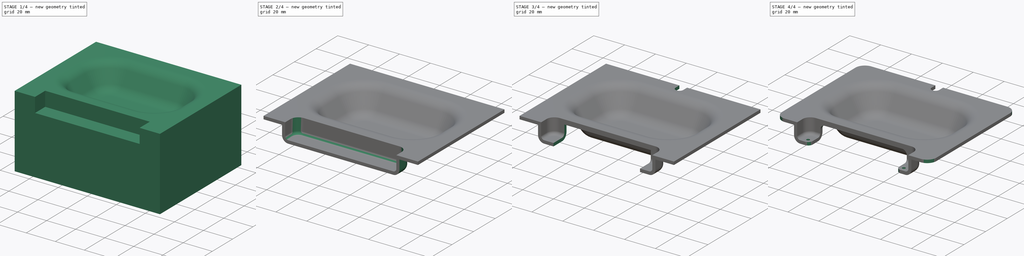
[diagram: build sequence overview — one tinted view per stage of 4, left to right]
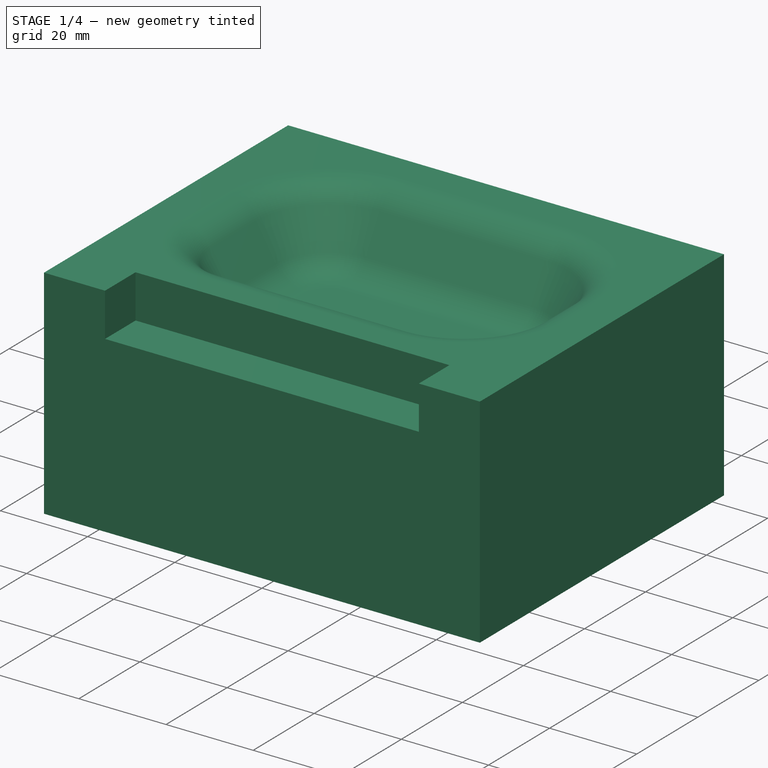
[diagram: stage 1 of 4 — iso view after this stage's code; geometry added in this stage tinted green]
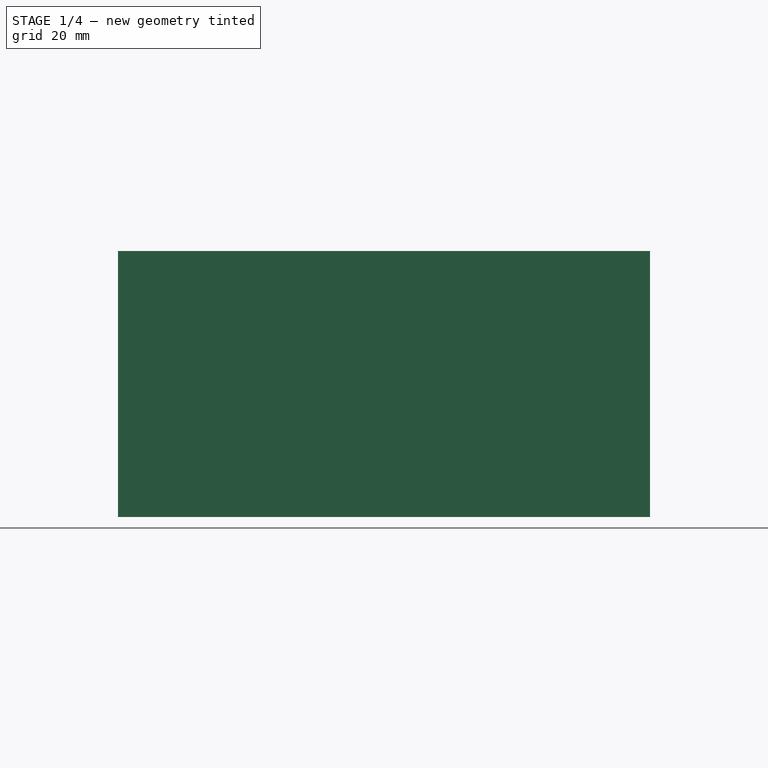
[diagram: stage 1 of 4 — front view after this stage's code; geometry added in this stage tinted green]
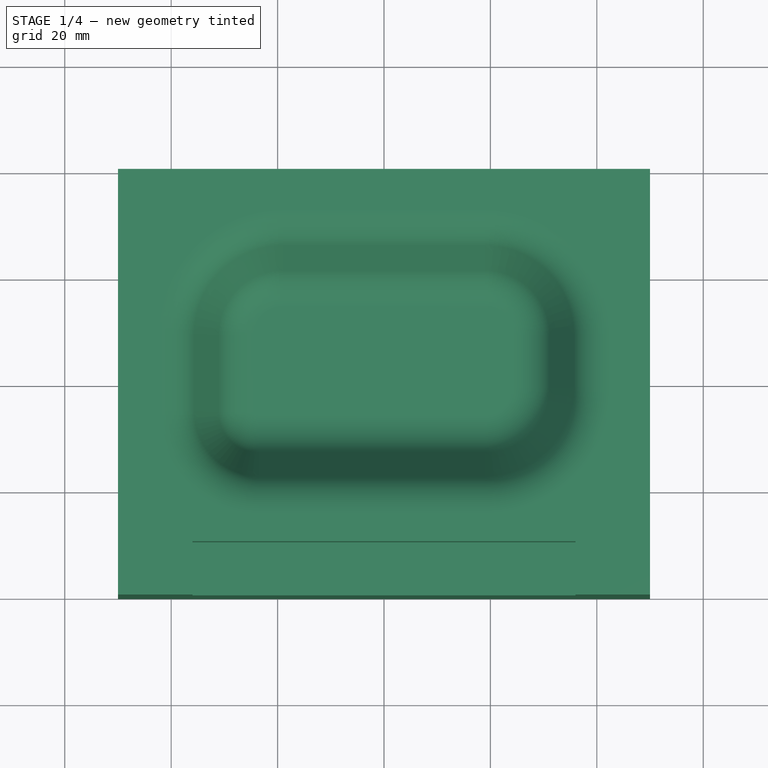
[diagram: stage 1 of 4 — top view after this stage's code; geometry added in this stage tinted green]
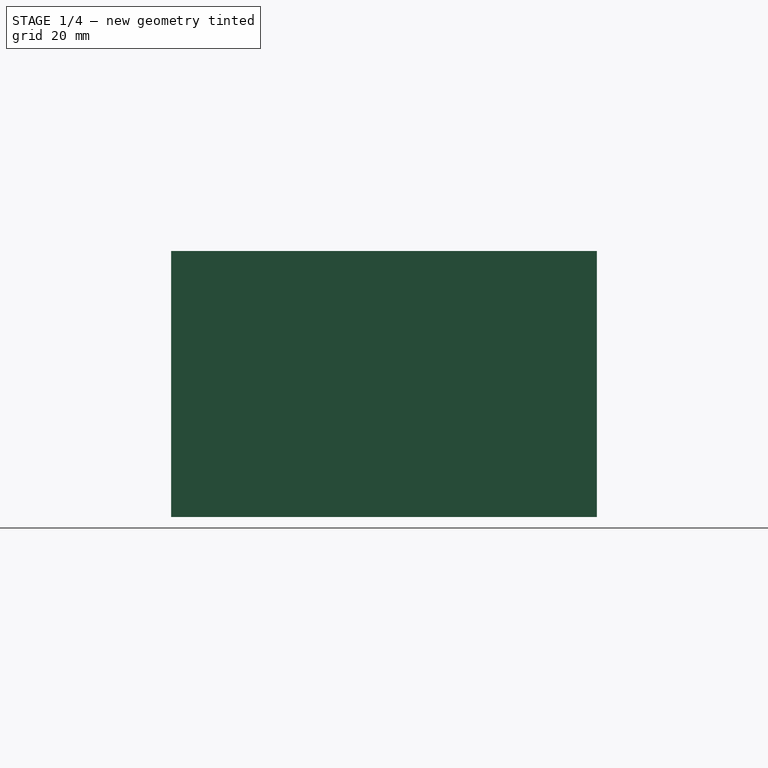
[diagram: stage 1 of 4 — right view after this stage's code; geometry added in this stage tinted green]
FCSTD DOCUMENT  (FreeCAD 0.21R33771 (Git))
Label: ex12
License: All rights reserved
LicenseURL: https://en.wikipedia.org/wiki/All_rights_reserved
objects: PartDesign::Fillet×7, Sketcher::SketchObject×6, PartDesign::Pocket×5, PartDesign::Pad×1, PartDesign::Thickness×1, PartDesign::Body×1
note: 35 computed .brp shape members not serialized (recipe doc carries the construction recipe); baked Part::Feature solids carry a one-line shape summary decoded from their .brp

FEATURE [Sketcher::SketchObject] Sketch
  FullyConstrained = true
  MapMode = 5
  Support = -> [XY_Plane]
  sketch-geometry (5):
    g0: LineSegment StartX=-50 StartY=-40 StartZ=0 EndX=-50 EndY=40 EndZ=0
    g1: LineSegment StartX=-50 StartY=40 StartZ=0 EndX=50 EndY=40 EndZ=0
    g2: LineSegment StartX=50 StartY=40 StartZ=0 EndX=50 EndY=-40 EndZ=0
    g3: LineSegment StartX=50 StartY=-40 StartZ=0 EndX=-50 EndY=-40 EndZ=0
    g4: GeomPoint X=0 Y=0 Z=0
  constraints (12):
    c: Coincident(g0,g1)
    c: Coincident(g1,g2)
    c: Coincident(g2,g3)
    c: Coincident(g3,g0)
    c: Horizontal(g1)
    c: Horizontal(g3)
    c: Vertical(g0)
    c: Vertical(g2)
    c: Symmetric(g1,g0,g4)
    c: Coincident(g4,g-1)
    c: DistanceX(g1,g1) = 100
    c: DistanceY(g2,g2) = 80
FEATURE [PartDesign::Pad] Pad
  Direction = (0,0,1)
  Length = 50
  Length2 = 10
  Profile = -> Sketch
  ReferenceAxis = -> Sketch [N_Axis]
  Reversed = true
  Type = 0
FEATURE [Sketcher::SketchObject] Sketch001
  ExternalGeometry = -> [Pad]
  FullyConstrained = false
  MapMode = 5
  Support = -> [Pad]
  sketch-geometry (10):
    g0: ArcOfCircle CenterX=-18.9746 CenterY=8.97464 CenterZ=0 NormalX=0 NormalY=0 NormalZ=1 AngleXU=0 Radius=19.0254 StartAngle=1.5708 EndAngle=3.14159
    g1: LineSegment StartX=-18.9746 StartY=28 StartZ=0 EndX=18.9746 EndY=28 EndZ=0
    g2: ArcOfCircle CenterX=18.9746 CenterY=8.97464 CenterZ=0 NormalX=0 NormalY=0 NormalZ=1 AngleXU=0 Radius=19.0254 StartAngle=1e-16 EndAngle=1.5708
    g3: LineSegment StartX=38 StartY=8.97464 StartZ=0 EndX=38 EndY=-0.974642 EndZ=0
    g4: ArcOfCircle CenterX=18.9746 CenterY=-0.974642 CenterZ=0 NormalX=0 NormalY=0 NormalZ=1 AngleXU=0 Radius=19.0254 StartAngle=4.71239 EndAngle=6.28319
    g5: LineSegment StartX=18.9746 StartY=-20 StartZ=0 EndX=-23.5249 EndY=-20 EndZ=0
    g6: ArcOfCircle CenterX=-23.5249 CenterY=-5.5249 CenterZ=0 NormalX=0 NormalY=0 NormalZ=1 AngleXU=0 Radius=14.4751 StartAngle=3.14159 EndAngle=4.71239
    g7: LineSegment StartX=-38 StartY=-5.5249 StartZ=0 EndX=-38 EndY=8.97464 EndZ=0
    g8: GeomPoint X=-38 Y=28 Z=0
    g9: GeomPoint X=38 Y=-20 Z=0
  constraints (21):
    c: Tangent(g0,g1) = 1.5708
    c: Tangent(g1,g2) = 1.5708
    c: Tangent(g2,g3) = 1.5708
    c: Tangent(g3,g4) = 1.5708
    c: Tangent(g4,g5) = 1.5708
    c: Tangent(g5,g6) = 1.5708
    c: Tangent(g6,g7) = 1.5708
    c: Tangent(g7,g0) = 1.5708
    c: Horizontal(g1)
    c: Horizontal(g5)
    c: Vertical(g3)
    c: Vertical(g7)
    c: Equal(g2,g4)
    c: PointOnObject(g8,g1)
    c: PointOnObject(g8,g7)
    c: PointOnObject(g9,g3)
    c: PointOnObject(g9,g5)
    c: Symmetric(g0,g2,g-2)
    c: DistanceY(g1,g-4) = 12
    c: Distance(g2,g-4) = 12
    c: Distance(g4,g-5) = 20
FEATURE [PartDesign::Pocket] Pocket
  BaseFeature = -> Pad
  Direction = (0,0,-1)
  Length = 16
  Length2 = 5
  Profile = -> Sketch001
  ReferenceAxis = -> Sketch001 [N_Axis]
  TaperAngle = -30
  Type = 0
FEATURE [PartDesign::Fillet] Fillet
  Base = -> Pocket [Edge36,Edge19]
  BaseFeature = -> Pocket
  Radius = 8
  SupportTransform = false
  UseAllEdges = false
FEATURE [Sketcher::SketchObject] Sketch003
  ExternalGeometry = -> [Fillet]
  FullyConstrained = true
  MapMode = 5
  Support = -> [Fillet]
  sketch-geometry (4):
    g0: LineSegment StartX=-36 StartY=-30 StartZ=0 EndX=36 EndY=-30 EndZ=0
    g1: LineSegment StartX=36 StartY=-30 StartZ=0 EndX=36 EndY=-40 EndZ=0
    g2: LineSegment StartX=36 StartY=-40 StartZ=0 EndX=-36 EndY=-40 EndZ=0
    g3: LineSegment StartX=-36 StartY=-40 StartZ=0 EndX=-36 EndY=-30 EndZ=0
  constraints (11):
    c: Coincident(g0,g1)
    c: Coincident(g1,g2)
    c: Coincident(g2,g3)
    c: Coincident(g3,g0)
    c: Horizontal(g0)
    c: Vertical(g1)
    c: Vertical(g3)
    c: PointOnObject(g1,g-3)
    c: Symmetric(g2,g1,g-2)
    c: Distance(g0,g0) = 72
    c: DistanceY(g1,g1) = 10
FEATURE [PartDesign::Pocket] Pocket001
  BaseFeature = -> Fillet
  Direction = (0,0,-1)
  Length = 10
  Length2 = 5
  Profile = -> Sketch003
  ReferenceAxis = -> Sketch003 [N_Axis]
  Type = 0
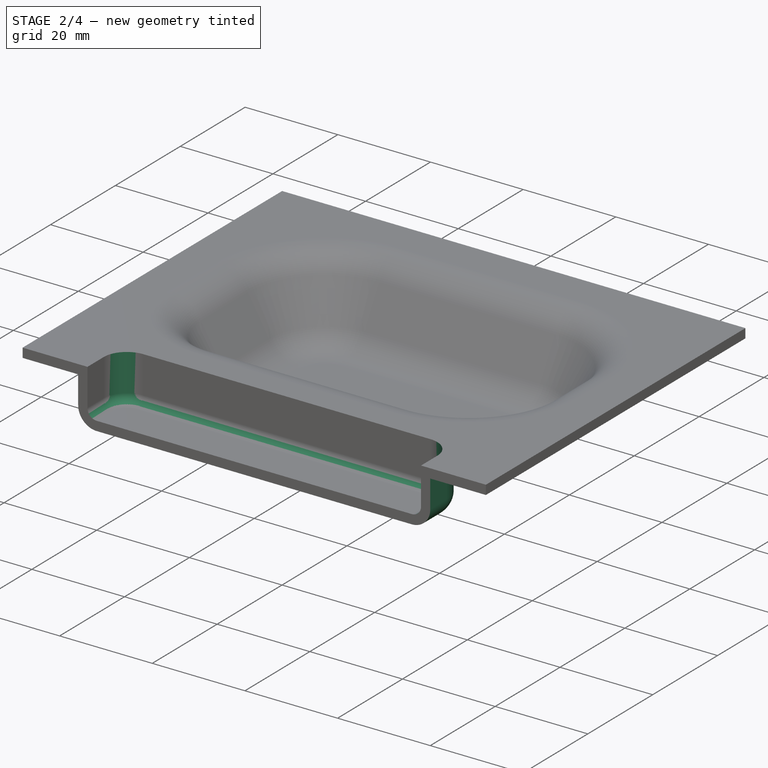
[diagram: stage 2 of 4 — iso view after this stage's code; geometry added in this stage tinted green]
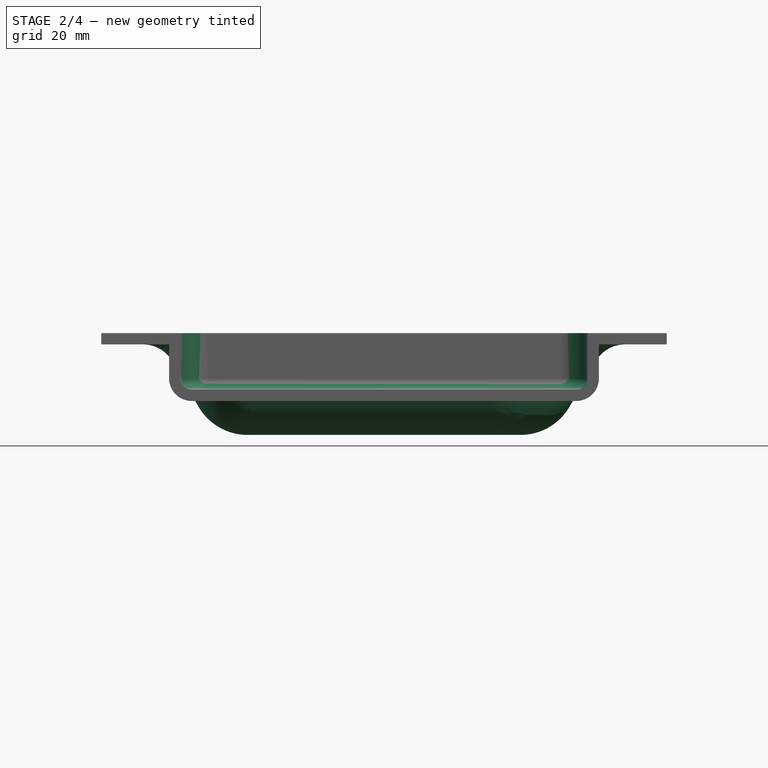
[diagram: stage 2 of 4 — front view after this stage's code; geometry added in this stage tinted green]
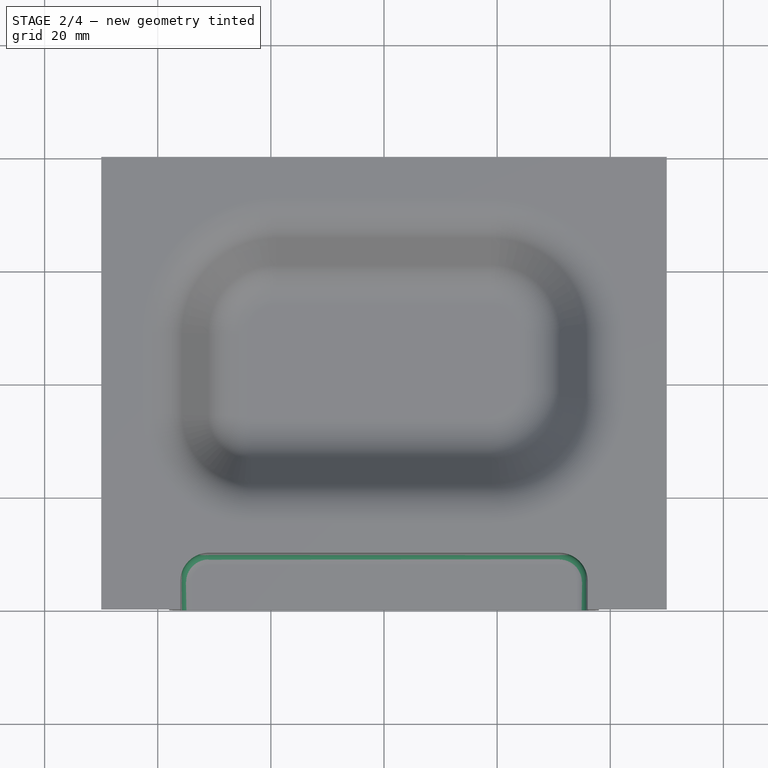
[diagram: stage 2 of 4 — top view after this stage's code; geometry added in this stage tinted green]
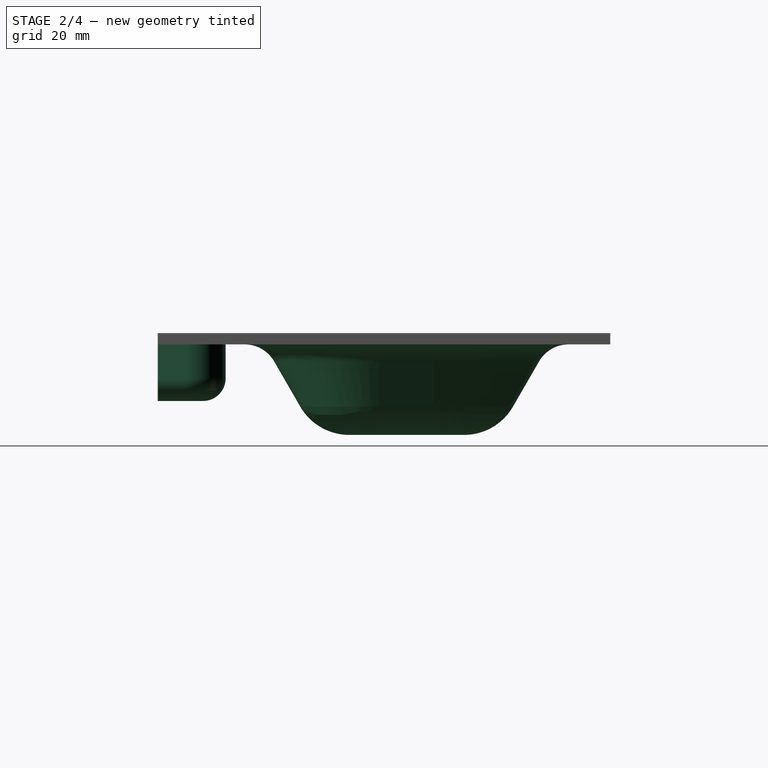
[diagram: stage 2 of 4 — right view after this stage's code; geometry added in this stage tinted green]
FEATURE [PartDesign::Fillet] Fillet001
  Base = -> Pocket001 [Edge30,Edge28]
  BaseFeature = -> Pocket001
  Radius = 5
  SupportTransform = false
  UseAllEdges = false
FEATURE [PartDesign::Fillet] Fillet002
  Base = -> Fillet001 [Edge34]
  BaseFeature = -> Fillet001
  Radius = 2
  SupportTransform = false
  UseAllEdges = false
FEATURE [PartDesign::Thickness] Thickness
  Base = -> Fillet002 [Face5,Face9,Face11,Face23,Face13]
  BaseFeature = -> Fillet002
  Intersection = false
  Join = 0
  Mode = 0
  Reversed = true
  SupportTransform = false
  Value = 2
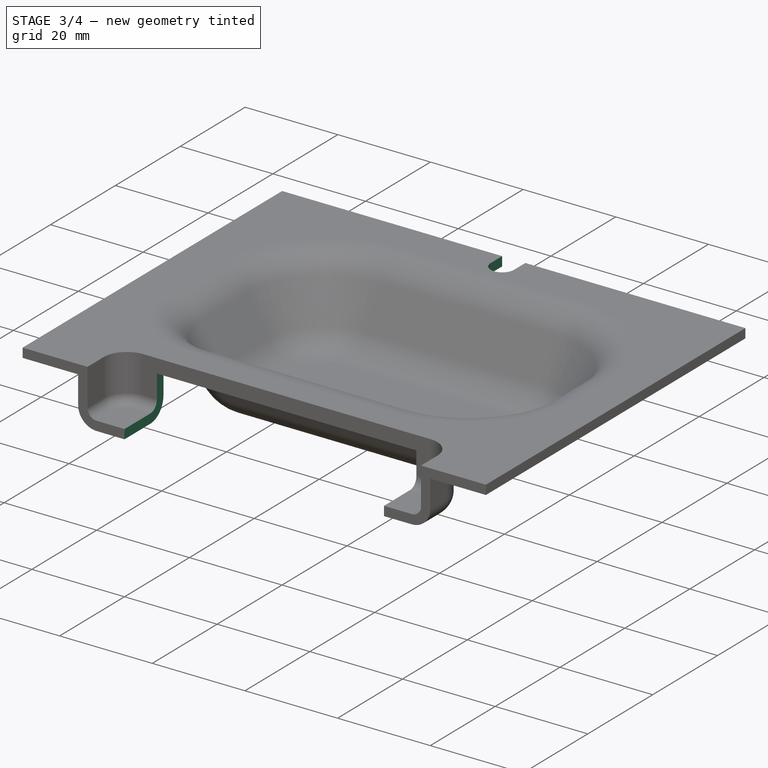
[diagram: stage 3 of 4 — iso view after this stage's code; geometry added in this stage tinted green]
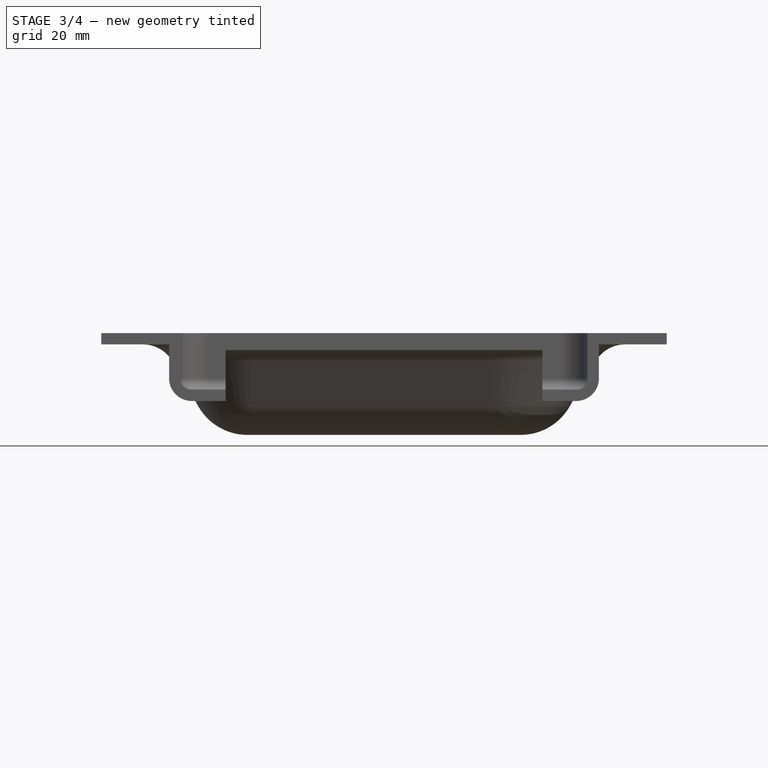
[diagram: stage 3 of 4 — front view after this stage's code; geometry added in this stage tinted green]
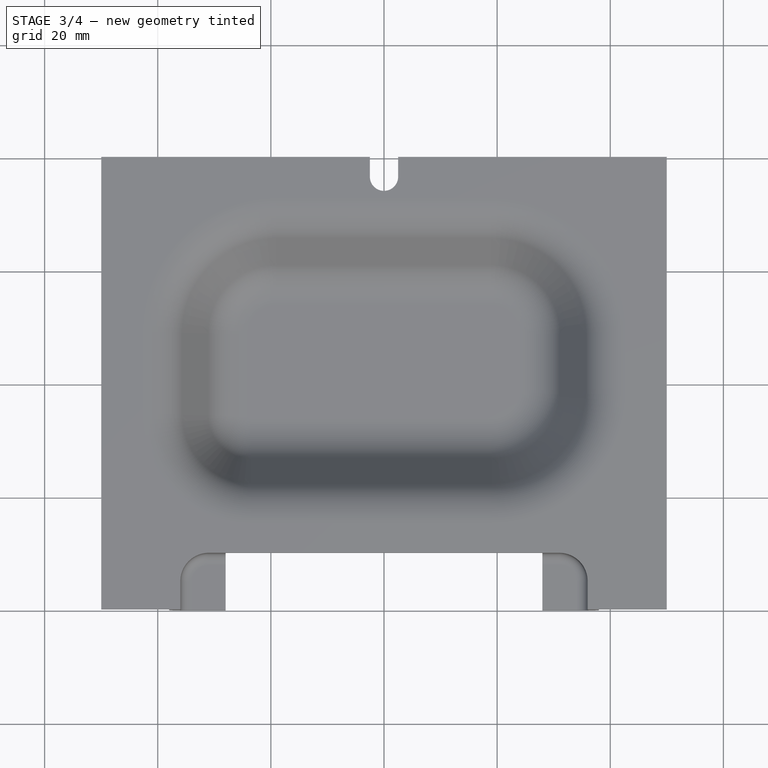
[diagram: stage 3 of 4 — top view after this stage's code; geometry added in this stage tinted green]
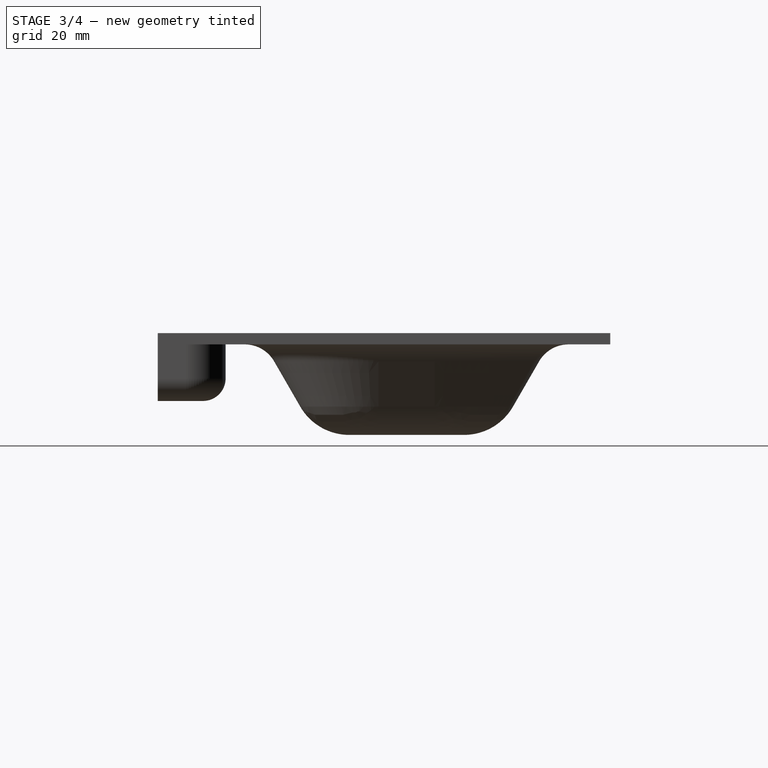
[diagram: stage 3 of 4 — right view after this stage's code; geometry added in this stage tinted green]
FEATURE [PartDesign::Fillet] Fillet003
  Base = -> Thickness [Edge12]
  BaseFeature = -> Thickness
  Radius = 2
  SupportTransform = false
  UseAllEdges = false
FEATURE [Sketcher::SketchObject] Sketch006
  ExternalGeometry = -> [Fillet003]
  FullyConstrained = false
  MapMode = 5
  Placement = pos=(0,-40,0) rot=(1,0,0;1.5708rad)
  Support = -> [Fillet003]
  sketch-geometry (4):
    g0: LineSegment StartX=-28 StartY=-3 StartZ=0 EndX=28 EndY=-3 EndZ=0
    g1: LineSegment StartX=28 StartY=-3 StartZ=0 EndX=28 EndY=-20.6344 EndZ=0
    g2: LineSegment StartX=28 StartY=-20.6344 StartZ=0 EndX=-28 EndY=-20.6344 EndZ=0
    g3: LineSegment StartX=-28 StartY=-20.6344 StartZ=0 EndX=-28 EndY=-3 EndZ=0
  constraints (10):
    c: Coincident(g0,g1)
    c: Coincident(g1,g2)
    c: Coincident(g2,g3)
    c: Coincident(g3,g0)
    c: Horizontal(g0)
    c: Vertical(g1)
    c: Vertical(g3)
    c: Symmetric(g1,g2,g-2)
    c: DistanceY(g-1,g0) = -3
    c: Distance(g0,g-3) = 10
FEATURE [PartDesign::Pocket] Pocket002
  BaseFeature = -> Fillet003
  Direction = (0,1,-2e-16)
  Length = 0
  Length2 = 5
  Profile = -> Sketch006
  ReferenceAxis = -> Sketch006 [N_Axis]
  Type = 3
  UpToFace = -> Fillet003 [Face70]
FEATURE [Sketcher::SketchObject] Sketch007
  ExternalGeometry = -> [Pocket002]
  FullyConstrained = false
  MapMode = 5
  Support = -> [Pocket002]
  sketch-geometry (5):
    g0: ArcOfCircle CenterX=0 CenterY=51.4943 CenterZ=0 NormalX=0 NormalY=0 NormalZ=1 AngleXU=0 Radius=2.5 StartAngle=4.41e-14 EndAngle=3.14159
    g1: ArcOfCircle CenterX=0 CenterY=36.5 CenterZ=0 NormalX=0 NormalY=0 NormalZ=1 AngleXU=0 Radius=2.5 StartAngle=3.14159 EndAngle=6.28319
    g2: LineSegment StartX=-2.5 StartY=51.4943 StartZ=0 EndX=-2.5 EndY=36.5 EndZ=0
    g3: LineSegment StartX=2.5 StartY=36.5 StartZ=0 EndX=2.5 EndY=51.4943 EndZ=0
    g4: GeomPoint X=0 Y=34 Z=0
  constraints (10):
    c: Tangent(g0,g2) = -1.5708
    c: Tangent(g2,g1) = -1.5708
    c: Tangent(g1,g3) = -1.5708
    c: Tangent(g3,g0) = -1.5708
    c: Equal(g0,g1)
    c: PointOnObject(g0,g-2)
    c: PointOnObject(g1,g-2)
    c: Distance(g1,g1) = 5
    c: PointOnObject(g4,g1)
    c: Distance(g4,g-3) = 6
FEATURE [PartDesign::Pocket] Pocket003
  BaseFeature = -> Pocket002
  Direction = (0,0,-1)
  Length = 5
  Length2 = 5
  Profile = -> Sketch007
  ReferenceAxis = -> Sketch007 [N_Axis]
  Type = 0
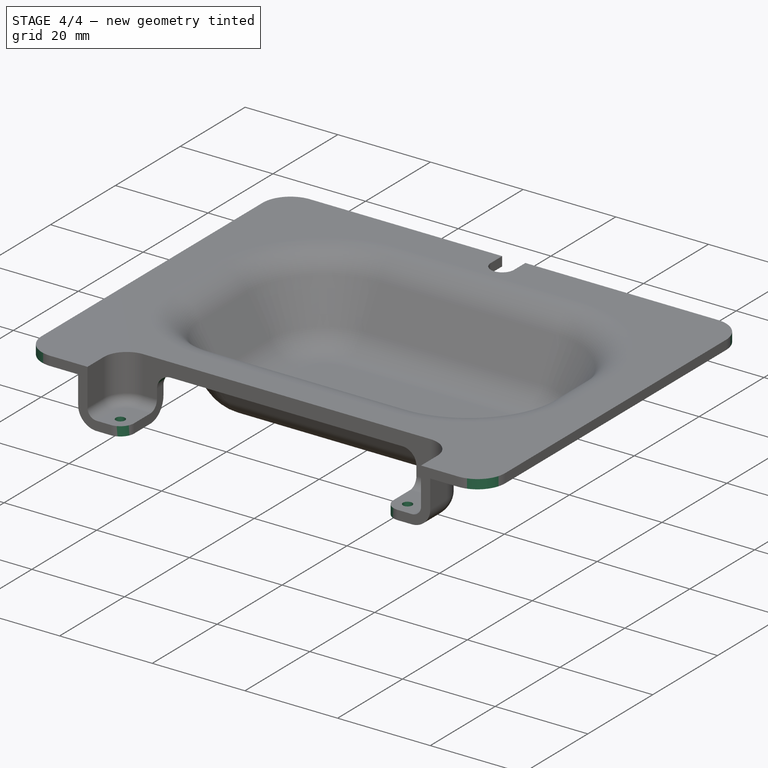
[diagram: stage 4 of 4 — iso view after this stage's code; geometry added in this stage tinted green]
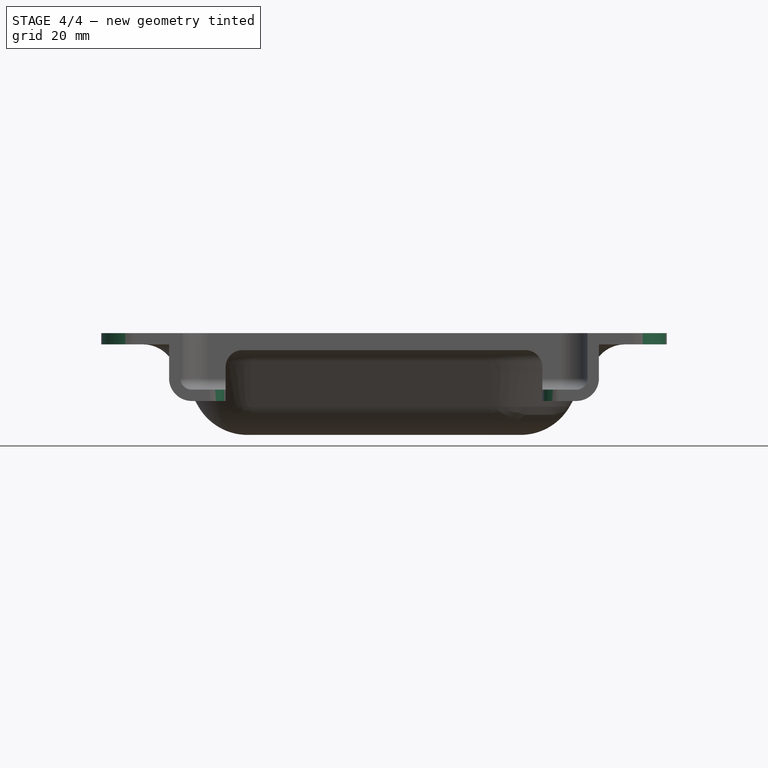
[diagram: stage 4 of 4 — front view after this stage's code; geometry added in this stage tinted green]
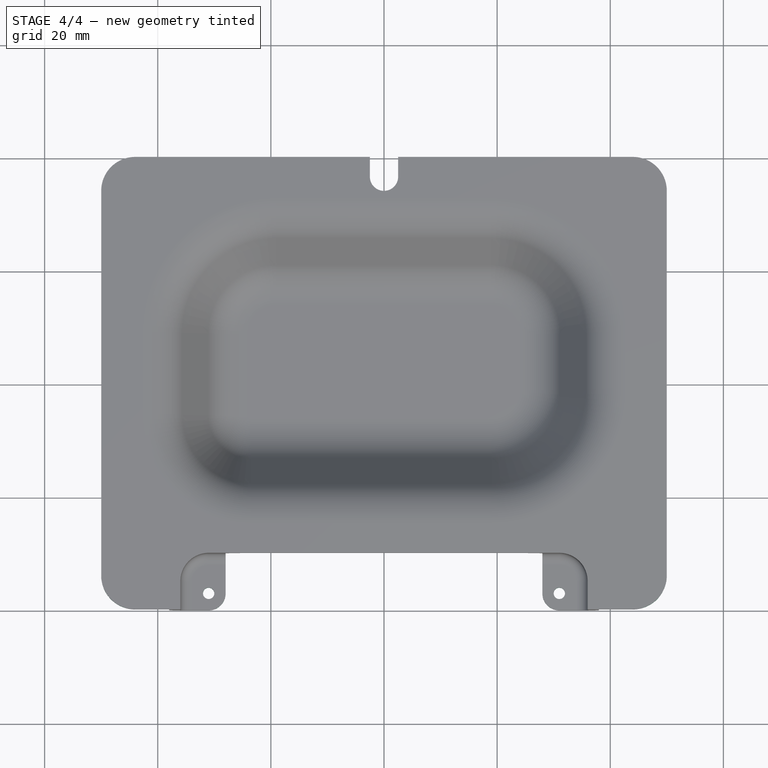
[diagram: stage 4 of 4 — top view after this stage's code; geometry added in this stage tinted green]
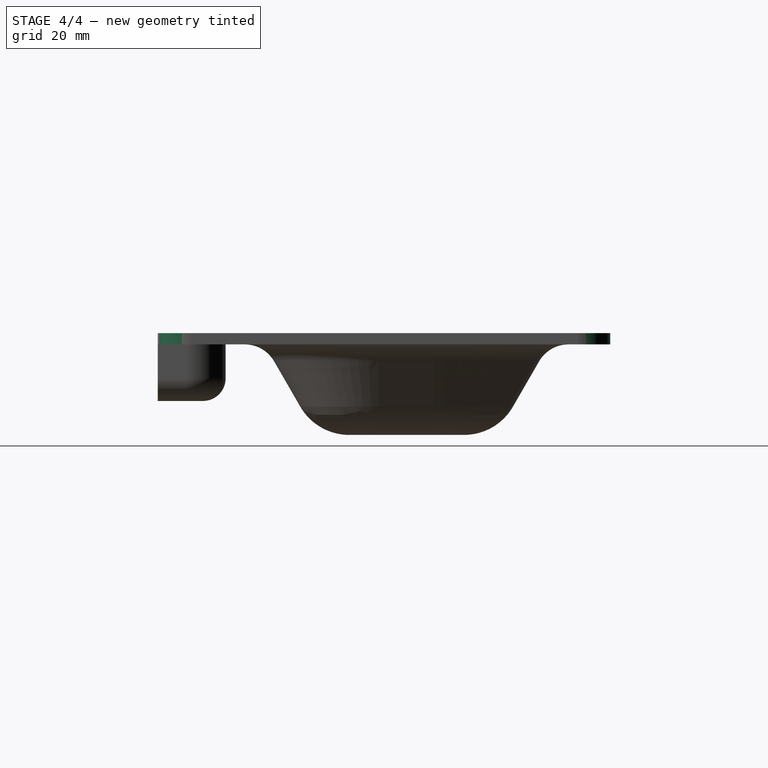
[diagram: stage 4 of 4 — right view after this stage's code; geometry added in this stage tinted green]
FEATURE [PartDesign::Fillet] Fillet004
  Base = -> Pocket003 [Edge76,Edge110,Edge100,Edge95]
  BaseFeature = -> Pocket003
  Radius = 6
  SupportTransform = false
  UseAllEdges = false
FEATURE [PartDesign::Fillet] Fillet005
  Base = -> Fillet004 [Edge34,Edge68]
  BaseFeature = -> Fillet004
  Radius = 3
  SupportTransform = false
  UseAllEdges = false
FEATURE [PartDesign::Fillet] Fillet006
  Base = -> Fillet005 [Edge82,Edge155]
  BaseFeature = -> Fillet005
  Radius = 3
  SupportTransform = false
  UseAllEdges = false
FEATURE [Sketcher::SketchObject] Sketch008
  ExternalGeometry = -> [Fillet006]
  FullyConstrained = true
  MapMode = 5
  Placement = pos=(0,0,-10) rot=(0,0,1;0rad)
  Support = -> [Fillet006]
  sketch-geometry (2):
    g0: Circle CenterX=-31 CenterY=-37 CenterZ=0 NormalX=0 NormalY=0 NormalZ=1 AngleXU=0 Radius=1
    g1: Circle CenterX=31 CenterY=-37 CenterZ=0 NormalX=0 NormalY=0 NormalZ=1 AngleXU=0 Radius=1
  constraints (4):
    c: Coincident(g0,g-3)
    c: Coincident(g1,g-4)
    c: Equal(g1,g0)
    c: Radius(g0) = 1
FEATURE [PartDesign::Pocket] Pocket004
  BaseFeature = -> Fillet006
  Direction = (0,0,-1)
  Length = 5
  Length2 = 5
  Profile = -> Sketch008
  ReferenceAxis = -> Sketch008 [N_Axis]
  Type = 0
FEATURE [PartDesign::Body] Body
  Group = -> [Sketch,Pad,Sketch001,Pocket,Fillet,Sketch003,Pocket001,Fillet001,Fillet002,Thickness,Fillet003,Sketch006,Pocket002,Sketch007,Pocket003,Fillet004,Fillet005,Fillet006,Sketch008,Pocket004]
  Origin = -> Origin
  Tip = -> Pocket004
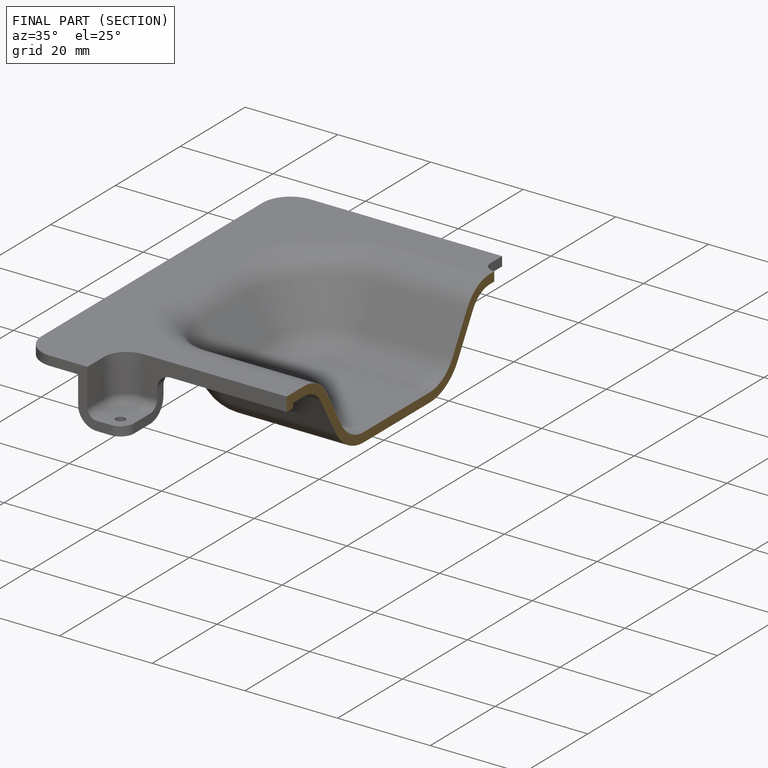
[diagram: finished part — half-section view (interior)]
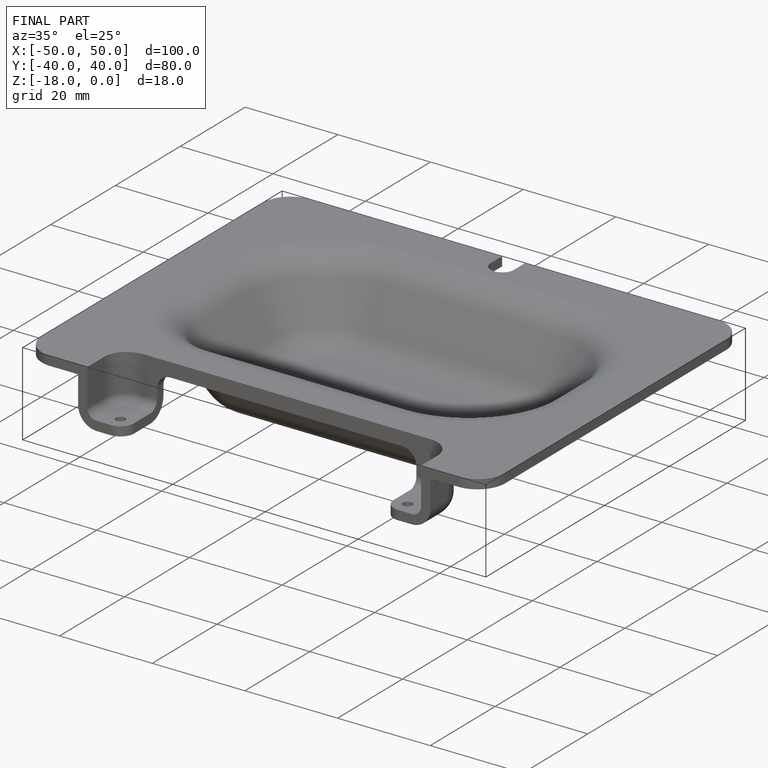
[diagram: finished part — iso view with bounding-box wireframe]
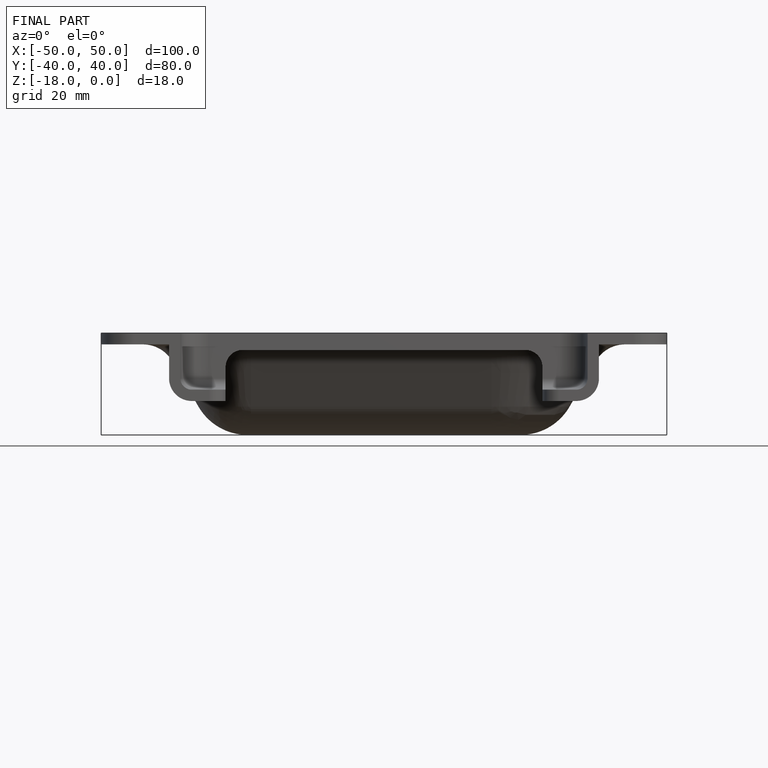
[diagram: finished part — front view with bounding-box wireframe]
